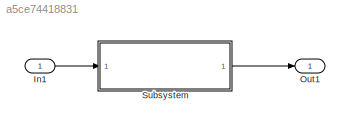
MODEL slx_a5ce74418831
KIND model
CONFIG AbsTol = auto
CONFIG EnableMultiTasking = off
CONFIG FixedStep = auto
CONFIG MaxStep = auto
CONFIG MinStep = auto
CONFIG RelTol = 1e-3
CONFIG SampleTimeConstraint = Unconstrained
CONFIG SolverName = VariableStepAuto
CONFIG StartTime = 0.0
CONFIG StopTime = 10.0
BLOCK [Inport] In1
BLOCK [Outport] Out1
BLOCK [ModelReference] Subsystem
  ModelNameDialog = PID_reference_model
  ModelReferenceVersion = 1.3
  Ports = [1, 1]
LINE In1:1 -> Subsystem:1
LINE Subsystem:1 -> Out1:1
